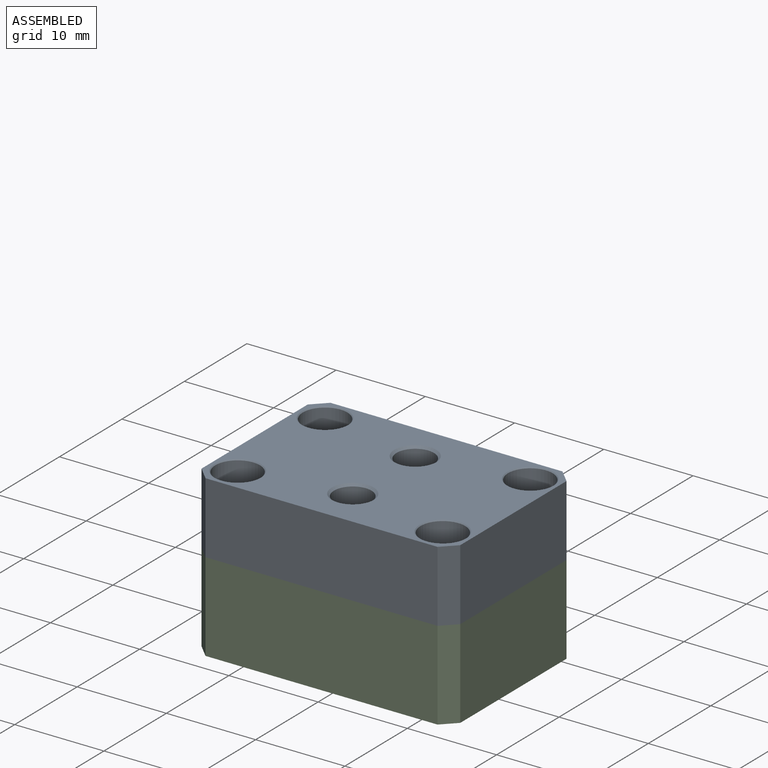
[diagram: assembled view]
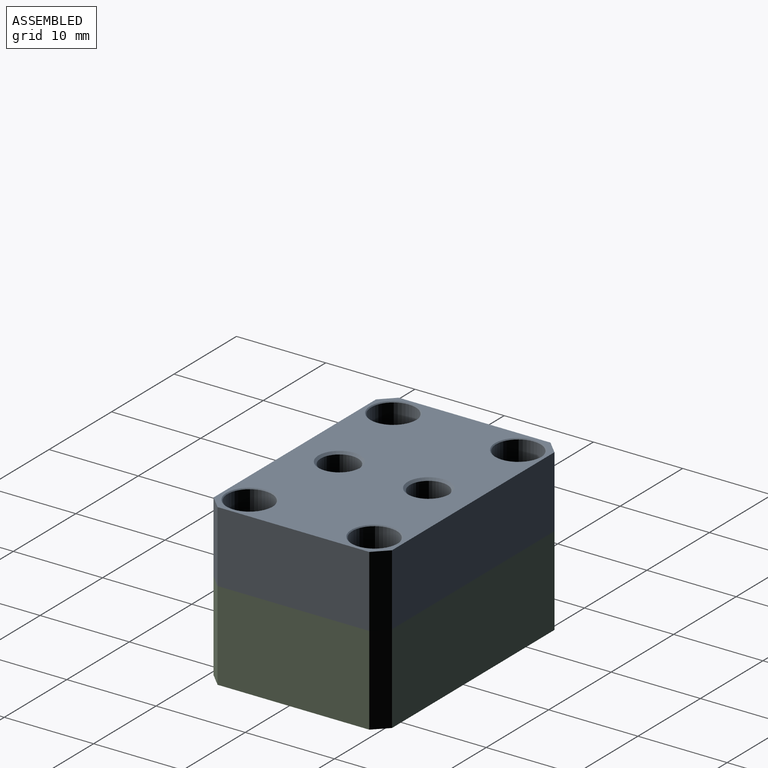
[diagram: assembled view, second angle]
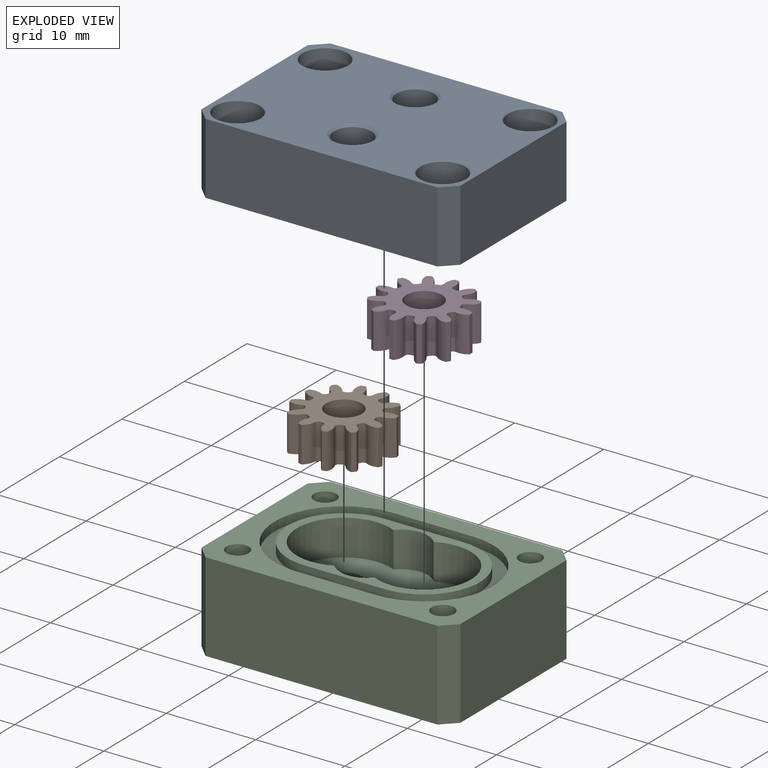
[diagram: exploded view]
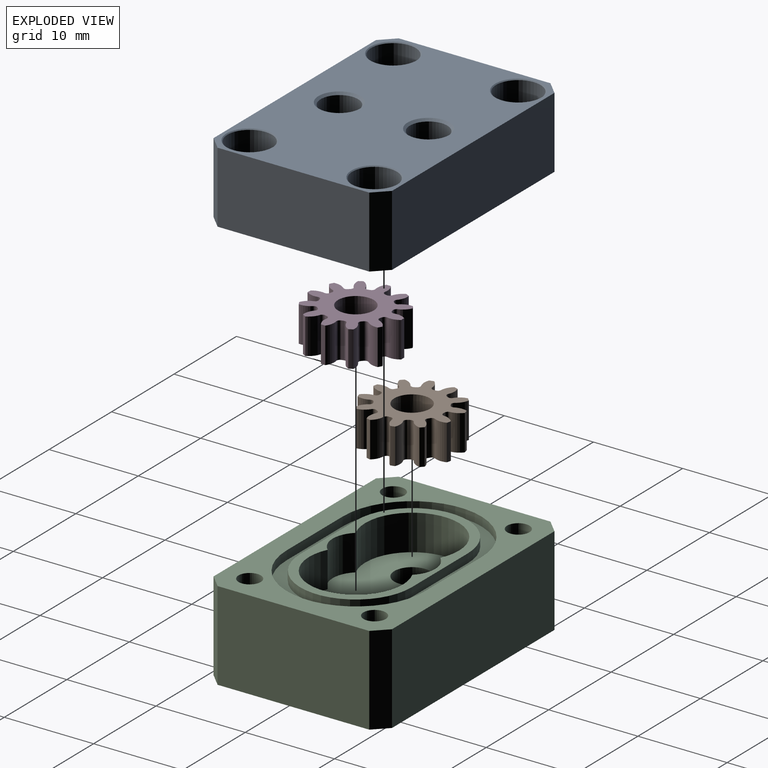
[diagram: exploded view, second angle]
ASSEMBLY  parts=4 mates=3
PART A: 40 faces, bbox 29x20x8 mm
  f0: cylinder r=1.25mm len=5mm, axis (0,0,1), area 39.3mm2, adj f11,f27
  f1: cylinder r=1.25mm len=5mm, axis (0,0,1), area 39.3mm2, adj f11,f23
  f2: cylinder r=1.25mm len=5mm, axis (0,0,1), area 39.3mm2, adj f11,f21
  f3: cylinder r=1.25mm len=5mm, axis (0,0,1), area 39.3mm2, adj f11,f25
  f4: cylinder r=1.25mm len=2.5mm, axis (0,0,1), area 15.7mm2, adj f11,f17
  f5: cylinder r=1.25mm len=2.5mm, axis (0,0,1), area 15.7mm2, adj f11,f19
  f6: plane 17x8mm, normal (-1,0,0), area 136mm2, adj f10,f11,f36,f37
  f7: plane 26x8mm, normal (0,-1,0), area 208mm2, adj f10,f11,f37,f39
  f8: plane 17x8mm, normal (1,0,0), area 136mm2, adj f10,f11,f38,f39
  f9: plane 26x8mm, normal (0,1,0), area 208mm2, adj f10,f11,f36,f38
  f10: plane 29x20mm, normal (0,0,-1), area 455.9mm2, adj f6,f7,f8,f9,f28,f29,f32,f33
  f11: plane 29x20mm, normal (0,0,1), area 518.3mm2, adj f0,f1,f2,f3,f4,f5,f6,f7
  f12: cylinder r=2mm len=4mm, axis (0,0,1), area 49mm2, adj f13,f30
  f13: plane 4x4mm, normal (0,0,1), area 12.6mm2, adj f12
  f14: cylinder r=2mm len=4mm, axis (0,0,1), area 49mm2, adj f15,f31
  f15: plane 4x4mm, normal (0,0,1), area 12.6mm2, adj f14
  f16: cylinder r=2.1mm len=5.75mm, axis (0,0,-1), area 75.9mm2, adj f17,f28
  f17: plane 4.2x4.2mm, normal (0,0,-1), area 8.9mm2, adj f4,f16
  f18: cylinder r=2.1mm len=5.75mm, axis (0,0,-1), area 75.9mm2, adj f19,f29
  f19: plane 4.2x4.2mm, normal (0,0,-1), area 8.9mm2, adj f5,f18
  f20: cylinder r=2.5mm len=5mm, axis (0,0,-1), area 45.6mm2, adj f21,f35
  f21: plane 5x5mm, normal (0,0,-1), area 14.7mm2, adj f2,f20
  f22: cylinder r=2.5mm len=5mm, axis (0,0,-1), area 45.6mm2, adj f23,f32
  f23: plane 5x5mm, normal (0,0,-1), area 14.7mm2, adj f1,f22
  f24: cylinder r=2.5mm len=5mm, axis (0,0,-1), area 45.6mm2, adj f25,f33
  f25: plane 5x5mm, normal (0,0,-1), area 14.7mm2, adj f3,f24
  f26: cylinder r=2.5mm len=5mm, axis (0,0,-1), area 45.6mm2, adj f27,f34
  f27: plane 5x5mm, normal (0,0,-1), area 14.7mm2, adj f0,f26
  f28: cone r=2.1mm half-angle=45deg, axis (0,0,-1), area 4.9mm2, adj f10,f16
  f29: cone r=2.1mm half-angle=45deg, axis (0,0,-1), area 4.9mm2, adj f10,f18
  f30: cone r=2mm half-angle=45deg, axis (0,0,1), area 1.8mm2, adj f11,f12
  f31: cone r=2mm half-angle=45deg, axis (0,0,1), area 1.8mm2, adj f11,f14
  f32: cone r=2.5mm half-angle=45deg, axis (0,0,-1), area 2.3mm2, adj f10,f22
  f33: cone r=2.5mm half-angle=45deg, axis (0,0,-1), area 2.3mm2, adj f10,f24
  f34: cone r=2.5mm half-angle=45deg, axis (0,0,-1), area 2.3mm2, adj f10,f26
  f35: cone r=2.5mm half-angle=45deg, axis (0,0,-1), area 2.3mm2, adj f10,f20
  f36: plane 8x1.5mm, normal (-0.71,0.71,0), area 17mm2, adj f6,f9,f10,f11
  f37: plane 8x1.5mm, normal (-0.71,-0.71,0), area 17mm2, adj f6,f7,f10,f11
  f38: plane 8x1.5mm, normal (0.71,0.71,0), area 17mm2, adj f8,f9,f10,f11
  f39: plane 8x1.5mm, normal (0.71,-0.71,0), area 17mm2, adj f7,f8,f10,f11
PART B: 75 faces, bbox 10.5x4x10.5 mm
  f0: cylinder r=3.56mm len=4mm, axis (0,1,0), area 0.9mm2, adj f12,f13,f17,f73
  f1: cylinder r=3.56mm len=4mm, axis (0,1,0), area 0.9mm2, adj f12,f13,f68,f72
  f2: cylinder r=3.56mm len=4mm, axis (0,1,0), area 0.9mm2, adj f12,f13,f63,f67
  f3: cylinder r=3.56mm len=4mm, axis (0,1,0), area 0.9mm2, adj f12,f13,f58,f62
  f4: cylinder r=3.56mm len=4mm, axis (0,1,0), area 0.9mm2, adj f12,f13,f53,f57
  f5: cylinder r=3.56mm len=4mm, axis (0,1,0), area 0.9mm2, adj f12,f13,f48,f52
  f6: cylinder r=3.56mm len=4mm, axis (0,1,0), area 0.9mm2, adj f12,f13,f43,f47
  f7: cylinder r=3.56mm len=4mm, axis (0,1,0), area 0.9mm2, adj f12,f13,f38,f42
  f8: cylinder r=3.56mm len=4mm, axis (0,1,0), area 0.9mm2, adj f12,f13,f33,f37
  f9: cylinder r=3.56mm len=4mm, axis (0,1,0), area 0.9mm2, adj f12,f13,f28,f32
  f10: cylinder r=3.56mm len=4mm, axis (0,1,0), area 0.9mm2, adj f12,f13,f23,f27
  f11: cylinder r=3.56mm len=4mm, axis (0,1,0), area 0.9mm2, adj f12,f13,f18,f22
  f12: plane 10.5x10.5mm, normal (0,-1,0), area 48.1mm2, adj f0,f1,f2,f3,f4,f5,f6,f7
  f13: plane 10.5x10.5mm, normal (0,1,0), area 48.1mm2, adj f0,f1,f2,f3,f4,f5,f6,f7
  f14: cylinder r=1.68mm len=4mm, axis (0,1,0), area 5.6mm2, adj f12,f13,f15,f18
  f15: cylinder r=5.25mm len=4mm, axis (0,1,0), area 2mm2, adj f12,f13,f14,f16
  f16: cylinder r=1.68mm len=4mm, axis (0,1,0), area 5.6mm2, adj f12,f13,f15,f17
  f17: cylinder r=0.38mm len=4mm, axis (0,1,0), area 2.3mm2, adj f0,f12,f13,f16
  f18: cylinder r=0.38mm len=4mm, axis (0,1,0), area 2.3mm2, adj f11,f12,f13,f14
  f19: cylinder r=1.68mm len=4mm, axis (0,1,0), area 5.6mm2, adj f12,f13,f20,f23
  f20: cylinder r=5.25mm len=4mm, axis (0,1,0), area 2mm2, adj f12,f13,f19,f21
  f21: cylinder r=1.68mm len=4mm, axis (0,1,0), area 5.6mm2, adj f12,f13,f20,f22
  f22: cylinder r=0.38mm len=4mm, axis (0,1,0), area 2.3mm2, adj f11,f12,f13,f21
  f23: cylinder r=0.38mm len=4mm, axis (0,1,0), area 2.3mm2, adj f10,f12,f13,f19
  f24: cylinder r=1.68mm len=4mm, axis (0,1,0), area 5.6mm2, adj f12,f13,f25,f28
  f25: cylinder r=5.25mm len=4mm, axis (0,1,0), area 2mm2, adj f12,f13,f24,f26
  f26: cylinder r=1.68mm len=4mm, axis (0,1,0), area 5.6mm2, adj f12,f13,f25,f27
  f27: cylinder r=0.38mm len=4mm, axis (0,1,0), area 2.3mm2, adj f10,f12,f13,f26
  f28: cylinder r=0.38mm len=4mm, axis (0,1,0), area 2.3mm2, adj f9,f12,f13,f24
  f29: cylinder r=1.68mm len=4mm, axis (0,1,0), area 5.6mm2, adj f12,f13,f30,f33
  f30: cylinder r=5.25mm len=4mm, axis (0,1,0), area 2mm2, adj f12,f13,f29,f31
  f31: cylinder r=1.68mm len=4mm, axis (0,1,0), area 5.6mm2, adj f12,f13,f30,f32
  f32: cylinder r=0.38mm len=4mm, axis (0,1,0), area 2.3mm2, adj f9,f12,f13,f31
  f33: cylinder r=0.38mm len=4mm, axis (0,1,0), area 2.3mm2, adj f8,f12,f13,f29
  f34: cylinder r=1.68mm len=4mm, axis (0,1,0), area 5.6mm2, adj f12,f13,f35,f38
  f35: cylinder r=5.25mm len=4mm, axis (0,1,0), area 2mm2, adj f12,f13,f34,f36
  f36: cylinder r=1.68mm len=4mm, axis (0,1,0), area 5.6mm2, adj f12,f13,f35,f37
  f37: cylinder r=0.38mm len=4mm, axis (0,1,0), area 2.3mm2, adj f8,f12,f13,f36
  f38: cylinder r=0.38mm len=4mm, axis (0,1,0), area 2.3mm2, adj f7,f12,f13,f34
  f39: cylinder r=1.68mm len=4mm, axis (0,1,0), area 5.6mm2, adj f12,f13,f40,f43
  f40: cylinder r=5.25mm len=4mm, axis (0,1,0), area 2mm2, adj f12,f13,f39,f41
  f41: cylinder r=1.68mm len=4mm, axis (0,1,0), area 5.6mm2, adj f12,f13,f40,f42
  f42: cylinder r=0.38mm len=4mm, axis (0,1,0), area 2.3mm2, adj f7,f12,f13,f41
  f43: cylinder r=0.38mm len=4mm, axis (0,1,0), area 2.3mm2, adj f6,f12,f13,f39
  f44: cylinder r=1.68mm len=4mm, axis (0,1,0), area 5.6mm2, adj f12,f13,f45,f48
  f45: cylinder r=5.25mm len=4mm, axis (0,1,0), area 2mm2, adj f12,f13,f44,f46
  f46: cylinder r=1.68mm len=4mm, axis (0,1,0), area 5.6mm2, adj f12,f13,f45,f47
  f47: cylinder r=0.38mm len=4mm, axis (0,1,0), area 2.3mm2, adj f6,f12,f13,f46
  f48: cylinder r=0.38mm len=4mm, axis (0,1,0), area 2.3mm2, adj f5,f12,f13,f44
  f49: cylinder r=1.68mm len=4mm, axis (0,1,0), area 5.6mm2, adj f12,f13,f50,f53
  f50: cylinder r=5.25mm len=4mm, axis (0,1,0), area 2mm2, adj f12,f13,f49,f51
  f51: cylinder r=1.68mm len=4mm, axis (0,1,0), area 5.6mm2, adj f12,f13,f50,f52
  f52: cylinder r=0.38mm len=4mm, axis (0,1,0), area 2.3mm2, adj f5,f12,f13,f51
  f53: cylinder r=0.38mm len=4mm, axis (0,1,0), area 2.3mm2, adj f4,f12,f13,f49
  f54: cylinder r=1.68mm len=4mm, axis (0,1,0), area 5.6mm2, adj f12,f13,f55,f58
  f55: cylinder r=5.25mm len=4mm, axis (0,1,0), area 2mm2, adj f12,f13,f54,f56
  f56: cylinder r=1.68mm len=4mm, axis (0,1,0), area 5.6mm2, adj f12,f13,f55,f57
  f57: cylinder r=0.38mm len=4mm, axis (0,1,0), area 2.3mm2, adj f4,f12,f13,f56
  f58: cylinder r=0.38mm len=4mm, axis (0,1,0), area 2.3mm2, adj f3,f12,f13,f54
  f59: cylinder r=1.68mm len=4mm, axis (0,1,0), area 5.6mm2, adj f12,f13,f60,f63
  f60: cylinder r=5.25mm len=4mm, axis (0,1,0), area 2mm2, adj f12,f13,f59,f61
  f61: cylinder r=1.68mm len=4mm, axis (0,1,0), area 5.6mm2, adj f12,f13,f60,f62
  f62: cylinder r=0.38mm len=4mm, axis (0,1,0), area 2.3mm2, adj f3,f12,f13,f61
  f63: cylinder r=0.38mm len=4mm, axis (0,1,0), area 2.3mm2, adj f2,f12,f13,f59
  f64: cylinder r=1.68mm len=4mm, axis (0,1,0), area 5.6mm2, adj f12,f13,f65,f68
  f65: cylinder r=5.25mm len=4mm, axis (0,1,0), area 2mm2, adj f12,f13,f64,f66
  f66: cylinder r=1.68mm len=4mm, axis (0,1,0), area 5.6mm2, adj f12,f13,f65,f67
  f67: cylinder r=0.38mm len=4mm, axis (0,1,0), area 2.3mm2, adj f2,f12,f13,f66
  f68: cylinder r=0.38mm len=4mm, axis (0,1,0), area 2.3mm2, adj f1,f12,f13,f64
  f69: cylinder r=1.68mm len=4mm, axis (0,1,0), area 5.6mm2, adj f12,f13,f70,f73
  f70: cylinder r=5.25mm len=4mm, axis (0,1,0), area 2mm2, adj f12,f13,f69,f71
  f71: cylinder r=1.68mm len=4mm, axis (0,1,0), area 5.6mm2, adj f12,f13,f70,f72
  f72: cylinder r=0.38mm len=4mm, axis (0,1,0), area 2.3mm2, adj f1,f12,f13,f71
  f73: cylinder r=0.38mm len=4mm, axis (0,1,0), area 2.3mm2, adj f0,f12,f13,f69
  f74: cylinder r=2mm len=4mm, axis (0,-1,0), area 50.3mm2, adj f12,f13
PART C: 36 faces, bbox 29x20x10 mm
  f0: cylinder r=2mm len=5mm, axis (0,0,1), area 62.8mm2, adj f27,f31
  f1: plane 21.5x12.5mm, normal (0,0,1), area 53.9mm2, adj f14,f15,f16,f21,f23,f24,f25,f26
  f2: plane 26x10mm, normal (0,1,0), area 260mm2, adj f8,f9,f32,f33
  f3: plane 17x10mm, normal (-1,0,0), area 170mm2, adj f8,f9,f33,f34
  f4: plane 26x10mm, normal (0,-1,0), area 260mm2, adj f8,f9,f34,f35
  f5: plane 17x10mm, normal (1,0,0), area 170mm2, adj f8,f9,f32,f35
  f6: cylinder r=1.25mm len=10mm, axis (0,0,1), area 78.5mm2, adj f8,f9
  f7: cylinder r=1.25mm len=10mm, axis (0,0,1), area 78.5mm2, adj f8,f9
  f8: plane 29x20mm, normal (0,0,-1), area 515.4mm2, adj f2,f3,f4,f5,f6,f7,f30,f32
  f9: plane 29x20mm, normal (0,0,1), area 227.7mm2, adj f2,f3,f4,f5,f6,f7,f10,f12
  f10: cylinder r=1.25mm len=5mm, axis (0,0,1), area 39.3mm2, adj f9,f11
  f11: plane 2.5x2.5mm, normal (0,0,1), area 4.9mm2, adj f10
  f12: cylinder r=1.25mm len=5mm, axis (0,0,1), area 39.3mm2, adj f9,f13
  f13: plane 2.5x2.5mm, normal (0,0,1), area 4.9mm2, adj f12
  f14: cylinder r=6.25mm len=12.5mm, axis (0,0,1), area 19.6mm2, adj f1,f15,f21,f22
  f15: plane 9x1mm, normal (0,1,0), area 9mm2, adj f1,f14,f16,f22
  f16: cylinder r=6.25mm len=12.5mm, axis (0,0,1), area 19.6mm2, adj f1,f15,f21,f22
  f17: cylinder r=7.75mm len=15.5mm, axis (0,0,1), area 24.3mm2, adj f9,f18,f20,f22
  f18: plane 9x1mm, normal (0,1,0), area 9mm2, adj f9,f17,f19,f22
  f19: cylinder r=7.75mm len=15.5mm, axis (0,0,1), area 24.3mm2, adj f9,f18,f20,f22
  f20: plane 9x1mm, normal (0,-1,0), area 9mm2, adj f9,f17,f19,f22
  f21: plane 9x1mm, normal (0,-1,0), area 9mm2, adj f1,f14,f16,f22
  f22: plane 24.5x15.5mm, normal (0,0,1), area 93mm2, adj f14,f15,f16,f17,f18,f19,f20,f21
  f23: cylinder r=3mm len=4.49mm, axis (0,0,1), area 20.3mm2, adj f1,f24,f26,f27
  f24: cylinder r=5.25mm len=10.5mm, axis (0,0,1), area 84.6mm2, adj f1,f23,f25,f27
  f25: cylinder r=3mm len=4.49mm, axis (0,0,1), area 20.3mm2, adj f1,f24,f26,f27
  f26: cylinder r=5.25mm len=10.5mm, axis (0,0,1), area 84.6mm2, adj f1,f23,f25,f27
  f27: plane 19.5x11.5mm, normal (0,0,1), area 156.2mm2, adj f0,f23,f24,f25,f26,f29
  f28: plane 4x4mm, normal (0,0,1), area 12.6mm2, adj f29
  f29: cylinder r=2mm len=4mm, axis (0,0,1), area 50.3mm2, adj f27,f28
  f30: cylinder r=4mm len=8mm, axis (0,0,-1), area 25.1mm2, adj f8,f31
  f31: plane 8x8mm, normal (0,0,-1), area 37.7mm2, adj f0,f30
  f32: plane 10x1.5mm, normal (0.71,0.71,0), area 21.2mm2, adj f2,f5,f8,f9
  f33: plane 10x1.5mm, normal (-0.71,0.71,0), area 21.2mm2, adj f2,f3,f8,f9
  f34: plane 10x1.5mm, normal (-0.71,-0.71,0), area 21.2mm2, adj f3,f4,f8,f9
  f35: plane 10x1.5mm, normal (0.71,-0.71,0), area 21.2mm2, adj f4,f5,f8,f9
PART D: same geometry as B
PLACE A rot(axis=(1,0,0),180deg) t=(-24.97,-18.78,-0.07)mm
PLACE B rot(axis=(0.98,-0.13,-0.13),91deg) t=(-14.97,-8.78,-2.07)mm
PLACE C t=(-24.97,1.22,-0.07)mm
PLACE D rot(axis=(1,0,0),90deg) t=(-5.97,-8.78,-2.07)mm
MATE revolute D.f0 <-> C.f16  axis (0,0,-1) through (-5.97,-8.78,-4.07)mm
MATE fastened A.f11 <-> C.f1  axis (0,0,-1) through (-10.47,-8.78,-0.07)mm
MATE revolute B.f0 <-> C.f0  axis (0,0,-1) through (-14.97,-8.78,-4.07)mm
